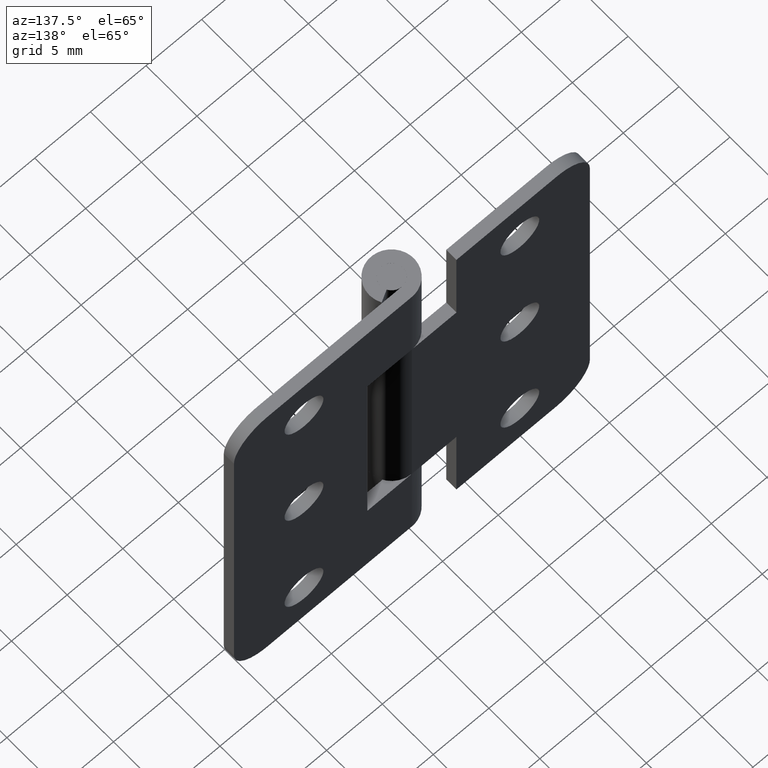
[diagram: clean part render]
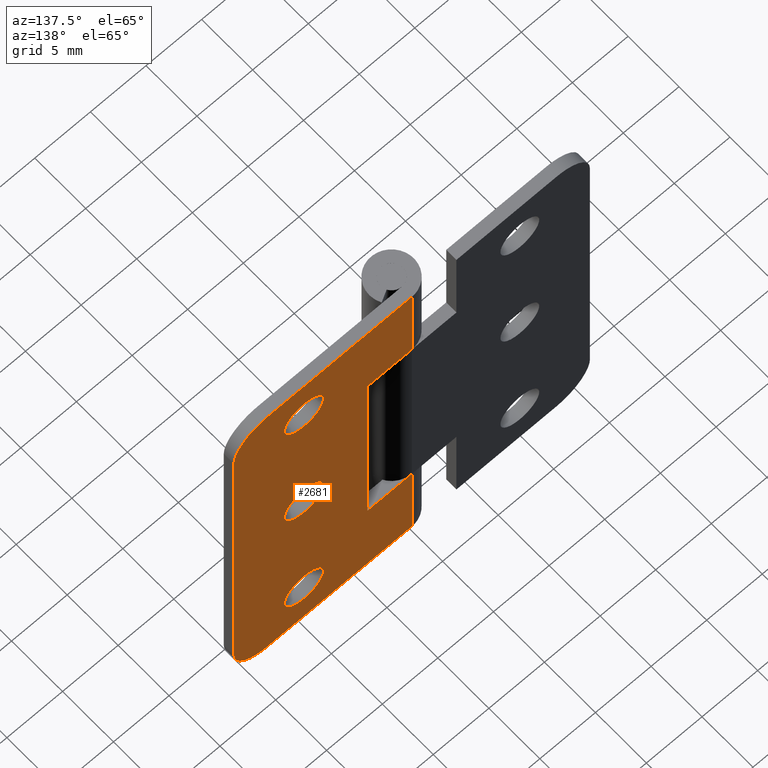
[diagram: same view with one face highlighted and labeled with its STEP entity id]
A machine part, auxiliary view. The second image highlights one B-rep face of the part: STEP entity #2681.
In plain terms, the highlighted face is a freeform B-spline surface patch.
Its self-contained STEP definition (entity closure, byte-faithful):
#1488=CARTESIAN_POINT('',(9.700004000000000,2.0,33.250000000000000));
#1489=VERTEX_POINT('',#1488);
#1490=CARTESIAN_POINT('',(7.955398665975187,2.0,31.637303417627429));
#1491=VERTEX_POINT('',#1490);
#1492=CARTESIAN_POINT('',(9.700004000000000,2.0,33.250000000000000));
#1493=CARTESIAN_POINT('',(8.082320639791041,2.000000000000000,33.250000000000000));
#1494=CARTESIAN_POINT('',(7.955398665975187,2.000000000000000,31.637303417627425));
#1502=(BOUNDED_CURVE()B_SPLINE_CURVE(2,(#1492,#1493,#1494),.UNSPECIFIED.,.F.,.U.)B_SPLINE_CURVE_WITH_KNOTS((3,3),(0.0,0.236331300612388),.UNSPECIFIED.)CURVE()GEOMETRIC_REPRESENTATION_ITEM()RATIONAL_B_SPLINE_CURVE((1.0,0.723120658629072,0.969723356129286))REPRESENTATION_ITEM(''));
#1503=EDGE_CURVE('',#1489,#1491,#1502,.T.);
#1505=CARTESIAN_POINT('',(11.444609334024809,2.0,31.362696582372578));
#1506=VERTEX_POINT('',#1505);
#1507=CARTESIAN_POINT('',(11.444609334024817,2.0,31.362696582372582));
#1508=CARTESIAN_POINT('',(11.450003999999995,2.000000000000000,31.431242312632406));
#1509=CARTESIAN_POINT('',(11.450004000000000,2.0,31.500000000000000));
#1510=CARTESIAN_POINT('',(11.450004000000000,2.0,33.249999999999993));
#1511=CARTESIAN_POINT('',(9.700004000000000,2.0,33.250000000000000));
#1519=(BOUNDED_CURVE()B_SPLINE_CURVE(2,(#1507,#1508,#1509,#1510,#1511),.UNSPECIFIED.,.F.,.U.)B_SPLINE_CURVE_WITH_KNOTS((3,2,3),(0.736331300612389,0.750000000000000,1.0),.UNSPECIFIED.)CURVE()GEOMETRIC_REPRESENTATION_ITEM()RATIONAL_B_SPLINE_CURVE((0.969723356129288,0.983986122557476,1.0,0.707106781186547,1.0))REPRESENTATION_ITEM(''));
#1520=EDGE_CURVE('',#1506,#1489,#1519,.T.);
#1587=CARTESIAN_POINT('',(9.700004000000000,2.0,29.750000000000000));
#1588=VERTEX_POINT('',#1587);
#1589=CARTESIAN_POINT('',(7.955398665975187,2.000000000000000,31.637303417627429));
#1590=CARTESIAN_POINT('',(7.950004000000001,2.000000000000000,31.568757687367601));
#1591=CARTESIAN_POINT('',(7.950004000000000,2.0,31.500000000000000));
#1592=CARTESIAN_POINT('',(7.950004000000000,2.0,29.750000000000007));
#1593=CARTESIAN_POINT('',(9.700004000000000,2.0,29.750000000000000));
#1601=(BOUNDED_CURVE()B_SPLINE_CURVE(2,(#1589,#1590,#1591,#1592,#1593),.UNSPECIFIED.,.F.,.U.)B_SPLINE_CURVE_WITH_KNOTS((3,2,3),(0.236331300612388,0.250000000000000,0.500000000000000),.UNSPECIFIED.)CURVE()GEOMETRIC_REPRESENTATION_ITEM()RATIONAL_B_SPLINE_CURVE((0.969723356129287,0.983986122557476,1.0,0.707106781186547,1.0))REPRESENTATION_ITEM(''));
#1602=EDGE_CURVE('',#1491,#1588,#1601,.T.);
#1636=CARTESIAN_POINT('',(9.700004000000000,2.0,29.750000000000000));
#1637=CARTESIAN_POINT('',(11.317687360208968,2.000000000000000,29.750000000000004));
#1638=CARTESIAN_POINT('',(11.444609334024811,2.000000000000000,31.362696582372578));
#1646=(BOUNDED_CURVE()B_SPLINE_CURVE(2,(#1636,#1637,#1638),.UNSPECIFIED.,.F.,.U.)B_SPLINE_CURVE_WITH_KNOTS((3,3),(0.500000000000000,0.736331300612389),.UNSPECIFIED.)CURVE()GEOMETRIC_REPRESENTATION_ITEM()RATIONAL_B_SPLINE_CURVE((1.0,0.723120658629071,0.969723356129288))REPRESENTATION_ITEM(''));
#1647=EDGE_CURVE('',#1588,#1506,#1646,.T.);
#1670=CARTESIAN_POINT('',(9.700004000000000,2.0,19.750000000000000));
#1671=VERTEX_POINT('',#1670);
#1672=CARTESIAN_POINT('',(7.955398665975187,2.0,18.137303417627429));
#1673=VERTEX_POINT('',#1672);
#1674=CARTESIAN_POINT('',(9.700004000000000,2.0,19.750000000000000));
#1675=CARTESIAN_POINT('',(8.082320639791037,2.0,19.749999999999996));
#1676=CARTESIAN_POINT('',(7.955398665975187,2.000000000000000,18.137303417627429));
#1684=(BOUNDED_CURVE()B_SPLINE_CURVE(2,(#1674,#1675,#1676),.UNSPECIFIED.,.F.,.U.)B_SPLINE_CURVE_WITH_KNOTS((3,3),(0.0,0.236331300612389),.UNSPECIFIED.)CURVE()GEOMETRIC_REPRESENTATION_ITEM()RATIONAL_B_SPLINE_CURVE((1.0,0.723120658629071,0.969723356129287))REPRESENTATION_ITEM(''));
#1685=EDGE_CURVE('',#1671,#1673,#1684,.T.);
#1687=CARTESIAN_POINT('',(11.444609334024809,2.0,17.862696582372571));
#1688=VERTEX_POINT('',#1687);
#1689=CARTESIAN_POINT('',(11.444609334024817,2.000000000000000,17.862696582372575));
#1690=CARTESIAN_POINT('',(11.450004000000002,2.000000000000000,17.931242312632399));
#1691=CARTESIAN_POINT('',(11.450004000000000,2.0,18.0));
#1692=CARTESIAN_POINT('',(11.450004000000000,2.0,19.749999999999996));
#1693=CARTESIAN_POINT('',(9.700004000000000,2.0,19.750000000000000));
#1701=(BOUNDED_CURVE()B_SPLINE_CURVE(2,(#1689,#1690,#1691,#1692,#1693),.UNSPECIFIED.,.F.,.U.)B_SPLINE_CURVE_WITH_KNOTS((3,2,3),(0.736331300612388,0.750000000000000,1.0),.UNSPECIFIED.)CURVE()GEOMETRIC_REPRESENTATION_ITEM()RATIONAL_B_SPLINE_CURVE((0.969723356129287,0.983986122557476,1.0,0.707106781186547,1.0))REPRESENTATION_ITEM(''));
#1702=EDGE_CURVE('',#1688,#1671,#1701,.T.);
#1769=CARTESIAN_POINT('',(9.700004000000000,2.0,16.250000000000000));
#1770=VERTEX_POINT('',#1769);
#1771=CARTESIAN_POINT('',(7.955398665975187,2.000000000000000,18.137303417627422));
#1772=CARTESIAN_POINT('',(7.950004000000000,2.000000000000000,18.068757687367601));
#1773=CARTESIAN_POINT('',(7.950004000000000,2.0,18.0));
#1774=CARTESIAN_POINT('',(7.950004000000000,2.0,16.249999999999993));
#1775=CARTESIAN_POINT('',(9.700004000000000,2.0,16.250000000000000));
#1783=(BOUNDED_CURVE()B_SPLINE_CURVE(2,(#1771,#1772,#1773,#1774,#1775),.UNSPECIFIED.,.F.,.U.)B_SPLINE_CURVE_WITH_KNOTS((3,2,3),(0.236331300612388,0.250000000000000,0.500000000000000),.UNSPECIFIED.)CURVE()GEOMETRIC_REPRESENTATION_ITEM()RATIONAL_B_SPLINE_CURVE((0.969723356129287,0.983986122557476,1.0,0.707106781186547,1.0))REPRESENTATION_ITEM(''));
#1784=EDGE_CURVE('',#1673,#1770,#1783,.T.);
#1818=CARTESIAN_POINT('',(9.700004000000000,2.0,16.250000000000000));
#1819=CARTESIAN_POINT('',(11.317687360208968,2.000000000000000,16.249999999999996));
#1820=CARTESIAN_POINT('',(11.444609334024811,2.000000000000000,17.862696582372571));
#1828=(BOUNDED_CURVE()B_SPLINE_CURVE(2,(#1818,#1819,#1820),.UNSPECIFIED.,.F.,.U.)B_SPLINE_CURVE_WITH_KNOTS((3,3),(0.500000000000000,0.736331300612389),.UNSPECIFIED.)CURVE()GEOMETRIC_REPRESENTATION_ITEM()RATIONAL_B_SPLINE_CURVE((1.0,0.723120658629071,0.969723356129288))REPRESENTATION_ITEM(''));
#1829=EDGE_CURVE('',#1770,#1688,#1828,.T.);
#1852=CARTESIAN_POINT('',(9.700004000000000,2.0,6.249999999999999));
#1853=VERTEX_POINT('',#1852);
#1854=CARTESIAN_POINT('',(7.955398665975188,2.0,4.637303417627427));
#1855=VERTEX_POINT('',#1854);
#1856=CARTESIAN_POINT('',(9.700004000000000,2.0,6.249999999999999));
#1857=CARTESIAN_POINT('',(8.082320639791039,2.000000000000000,6.250000000000000));
#1858=CARTESIAN_POINT('',(7.955398665975187,2.000000000000000,4.637303417627427));
#1866=(BOUNDED_CURVE()B_SPLINE_CURVE(2,(#1856,#1857,#1858),.UNSPECIFIED.,.F.,.U.)B_SPLINE_CURVE_WITH_KNOTS((3,3),(0.0,0.236331300612388),.UNSPECIFIED.)CURVE()GEOMETRIC_REPRESENTATION_ITEM()RATIONAL_B_SPLINE_CURVE((1.0,0.723120658629072,0.969723356129287))REPRESENTATION_ITEM(''));
#1867=EDGE_CURVE('',#1853,#1855,#1866,.T.);
#1869=CARTESIAN_POINT('',(11.444609334024809,2.0,4.362696582372575));
#1870=VERTEX_POINT('',#1869);
#1871=CARTESIAN_POINT('',(11.444609334024813,2.000000000000000,4.362696582372575));
#1872=CARTESIAN_POINT('',(11.450004000000000,2.0,4.431242312632401));
#1873=CARTESIAN_POINT('',(11.450004000000000,2.0,4.500000000000000));
#1874=CARTESIAN_POINT('',(11.450004000000000,2.0,6.249999999999999));
#1875=CARTESIAN_POINT('',(9.700004000000000,2.0,6.249999999999999));
#1883=(BOUNDED_CURVE()B_SPLINE_CURVE(2,(#1871,#1872,#1873,#1874,#1875),.UNSPECIFIED.,.F.,.U.)B_SPLINE_CURVE_WITH_KNOTS((3,2,3),(0.736331300612389,0.750000000000000,1.0),.UNSPECIFIED.)CURVE()GEOMETRIC_REPRESENTATION_ITEM()RATIONAL_B_SPLINE_CURVE((0.969723356129287,0.983986122557476,1.0,0.707106781186547,1.0))REPRESENTATION_ITEM(''));
#1884=EDGE_CURVE('',#1870,#1853,#1883,.T.);
#1951=CARTESIAN_POINT('',(9.700004000000000,2.0,2.750000000000000));
#1952=VERTEX_POINT('',#1951);
#1953=CARTESIAN_POINT('',(7.955398665975189,2.000000000000000,4.637303417627427));
#1954=CARTESIAN_POINT('',(7.950004000000000,2.000000000000000,4.568757687367600));
#1955=CARTESIAN_POINT('',(7.950004000000000,2.0,4.500000000000000));
#1956=CARTESIAN_POINT('',(7.950004000000000,2.0,2.749999999999999));
#1957=CARTESIAN_POINT('',(9.700004000000000,2.0,2.750000000000000));
#1965=(BOUNDED_CURVE()B_SPLINE_CURVE(2,(#1953,#1954,#1955,#1956,#1957),.UNSPECIFIED.,.F.,.U.)B_SPLINE_CURVE_WITH_KNOTS((3,2,3),(0.236331300612388,0.250000000000000,0.500000000000000),.UNSPECIFIED.)CURVE()GEOMETRIC_REPRESENTATION_ITEM()RATIONAL_B_SPLINE_CURVE((0.969723356129287,0.983986122557476,1.0,0.707106781186547,1.0))REPRESENTATION_ITEM(''));
#1966=EDGE_CURVE('',#1855,#1952,#1965,.T.);
#2000=CARTESIAN_POINT('',(9.700004000000000,2.0,2.750000000000000));
#2001=CARTESIAN_POINT('',(11.317687360208968,2.000000000000000,2.750000000000000));
#2002=CARTESIAN_POINT('',(11.444609334024811,2.000000000000000,4.362696582372576));
#2010=(BOUNDED_CURVE()B_SPLINE_CURVE(2,(#2000,#2001,#2002),.UNSPECIFIED.,.F.,.U.)B_SPLINE_CURVE_WITH_KNOTS((3,3),(0.500000000000000,0.736331300612389),.UNSPECIFIED.)CURVE()GEOMETRIC_REPRESENTATION_ITEM()RATIONAL_B_SPLINE_CURVE((1.0,0.723120658629071,0.969723356129288))REPRESENTATION_ITEM(''));
#2011=EDGE_CURVE('',#1952,#1870,#2010,.T.);
#2030=CARTESIAN_POINT('',(13.000006999999901,2.0,36.0));
#2031=VERTEX_POINT('',#2030);
#2032=CARTESIAN_POINT('',(16.000006999999901,2.0,33.0));
#2033=VERTEX_POINT('',#2032);
#2034=CARTESIAN_POINT('',(13.000006999999901,2.0,36.000000000000007));
#2035=CARTESIAN_POINT('',(16.000006999999904,2.000000000000000,36.000000000000014));
#2036=CARTESIAN_POINT('',(16.000006999999901,2.0,33.0));
#2044=(BOUNDED_CURVE()B_SPLINE_CURVE(2,(#2034,#2035,#2036),.UNSPECIFIED.,.F.,.U.)CURVE()GEOMETRIC_REPRESENTATION_ITEM()QUASI_UNIFORM_CURVE()RATIONAL_B_SPLINE_CURVE((1.0,0.707106781186548,1.0))REPRESENTATION_ITEM(''));
#2045=EDGE_CURVE('',#2031,#2033,#2044,.T.);
#2091=CARTESIAN_POINT('',(16.000006999999901,2.0,3.0));
#2092=VERTEX_POINT('',#2091);
#2093=CARTESIAN_POINT('',(13.000006999999901,2.0,0.0));
#2094=VERTEX_POINT('',#2093);
#2095=CARTESIAN_POINT('',(16.000006999999901,2.0,3.0));
#2096=CARTESIAN_POINT('',(16.000006999999904,2.000000000000000,0.0));
#2097=CARTESIAN_POINT('',(13.000006999999901,2.0,0.0));
#2105=(BOUNDED_CURVE()B_SPLINE_CURVE(2,(#2095,#2096,#2097),.UNSPECIFIED.,.F.,.U.)CURVE()GEOMETRIC_REPRESENTATION_ITEM()QUASI_UNIFORM_CURVE()RATIONAL_B_SPLINE_CURVE((1.0,0.707106781186548,1.0))REPRESENTATION_ITEM(''));
#2106=EDGE_CURVE('',#2092,#2094,#2105,.T.);
#2152=CARTESIAN_POINT('',(3.999999999999800,2.0,8.250000000000000));
#2153=VERTEX_POINT('',#2152);
#2159=CARTESIAN_POINT('',(-3.673807E-016,2.0,8.250000000000000));
#2160=VERTEX_POINT('',#2159);
#2161=CARTESIAN_POINT('',(3.999999999999800,2.0,8.250000000000000));
#2162=CARTESIAN_POINT('',(-3.673807E-016,2.0,8.250000000000000));
#2163=QUASI_UNIFORM_CURVE('',1,(#2161,#2162),.UNSPECIFIED.,.F.,.U.);
#2164=EDGE_CURVE('',#2153,#2160,#2163,.T.);
#2228=CARTESIAN_POINT('',(3.999999999999800,2.0,27.750000000000000));
#2229=VERTEX_POINT('',#2228);
#2235=CARTESIAN_POINT('',(3.999999999999800,2.0,27.750000000000000));
#2236=CARTESIAN_POINT('',(3.999999999999800,2.0,8.250000000000000));
#2237=QUASI_UNIFORM_CURVE('',1,(#2235,#2236),.UNSPECIFIED.,.F.,.U.);
#2238=EDGE_CURVE('',#2229,#2153,#2237,.T.);
#2284=CARTESIAN_POINT('',(-3.673807E-016,2.0,27.750000000000000));
#2285=VERTEX_POINT('',#2284);
#2305=CARTESIAN_POINT('',(-3.673807E-016,2.0,27.750000000000000));
#2306=CARTESIAN_POINT('',(3.999999999999800,2.0,27.750000000000000));
#2307=QUASI_UNIFORM_CURVE('',1,(#2305,#2306),.UNSPECIFIED.,.F.,.U.);
#2308=EDGE_CURVE('',#2285,#2229,#2307,.T.);
#2319=CARTESIAN_POINT('',(-3.673819E-016,2.0,0.0));
#2320=VERTEX_POINT('',#2319);
#2321=CARTESIAN_POINT('',(-3.673819E-016,2.0,0.0));
#2322=CARTESIAN_POINT('',(13.000006999999901,2.0,0.0));
#2323=QUASI_UNIFORM_CURVE('',1,(#2321,#2322),.UNSPECIFIED.,.F.,.U.);
#2324=EDGE_CURVE('',#2320,#2094,#2323,.T.);
#2397=CARTESIAN_POINT('',(-3.673819E-016,2.0,36.0));
#2398=VERTEX_POINT('',#2397);
#2399=CARTESIAN_POINT('',(-3.673819E-016,2.0,36.0));
#2400=CARTESIAN_POINT('',(13.000006999999901,2.0,36.0));
#2401=QUASI_UNIFORM_CURVE('',1,(#2399,#2400),.UNSPECIFIED.,.F.,.U.);
#2402=EDGE_CURVE('',#2398,#2031,#2401,.T.);
#2465=CARTESIAN_POINT('',(16.000006999999901,2.0,33.0));
#2466=CARTESIAN_POINT('',(16.000006999999901,2.0,3.0));
#2467=QUASI_UNIFORM_CURVE('',1,(#2465,#2466),.UNSPECIFIED.,.F.,.U.);
#2468=EDGE_CURVE('',#2033,#2092,#2467,.T.);
#2496=CARTESIAN_POINT('',(-3.673819E-016,2.0,36.0));
#2497=CARTESIAN_POINT('',(-3.673807E-016,2.0,27.750000000000000));
#2498=QUASI_UNIFORM_CURVE('',1,(#2496,#2497),.UNSPECIFIED.,.F.,.U.);
#2499=EDGE_CURVE('',#2398,#2285,#2498,.T.);
#2587=CARTESIAN_POINT('',(-3.673807E-016,2.0,8.250000000000000));
#2588=CARTESIAN_POINT('',(-3.673819E-016,2.0,0.0));
#2589=QUASI_UNIFORM_CURVE('',1,(#2587,#2588),.UNSPECIFIED.,.F.,.U.);
#2590=EDGE_CURVE('',#2160,#2320,#2589,.T.);
#2646=CARTESIAN_POINT('',(-0.799200318638877,2.0,-1.798199930225013));
#2647=CARTESIAN_POINT('',(-0.799200318638877,2.0,37.798200895820251));
#2648=CARTESIAN_POINT('',(16.799207747792408,2.0,-1.798199930225013));
#2649=CARTESIAN_POINT('',(16.799207747792408,2.0,37.798200895820251));
#2650=B_SPLINE_SURFACE_WITH_KNOTS('',1,1,((#2646,#2648),(#2647,#2649)),.UNSPECIFIED.,.F.,.F.,.U.,(2,2),(2,2),(0.0,39.596400826045262),(0.0,17.598408066431290),.UNSPECIFIED.);
#2651=ORIENTED_EDGE('',*,*,#2468,.T.);
#2652=ORIENTED_EDGE('',*,*,#2106,.T.);
#2653=ORIENTED_EDGE('',*,*,#2324,.F.);
#2654=ORIENTED_EDGE('',*,*,#2590,.F.);
#2655=ORIENTED_EDGE('',*,*,#2164,.F.);
#2656=ORIENTED_EDGE('',*,*,#2238,.F.);
#2657=ORIENTED_EDGE('',*,*,#2308,.F.);
#2658=ORIENTED_EDGE('',*,*,#2499,.F.);
#2659=ORIENTED_EDGE('',*,*,#2402,.T.);
#2660=ORIENTED_EDGE('',*,*,#2045,.T.);
#2661=EDGE_LOOP('',(#2651,#2652,#2653,#2654,#2655,#2656,#2657,#2658,#2659,#2660));
#2662=FACE_OUTER_BOUND('',#2661,.T.);
#2663=ORIENTED_EDGE('',*,*,#2011,.T.);
#2664=ORIENTED_EDGE('',*,*,#1884,.T.);
#2665=ORIENTED_EDGE('',*,*,#1867,.T.);
#2666=ORIENTED_EDGE('',*,*,#1966,.T.);
#2667=EDGE_LOOP('',(#2663,#2664,#2665,#2666));
#2668=FACE_BOUND('',#2667,.T.);
#2669=ORIENTED_EDGE('',*,*,#1829,.T.);
#2670=ORIENTED_EDGE('',*,*,#1702,.T.);
#2671=ORIENTED_EDGE('',*,*,#1685,.T.);
#2672=ORIENTED_EDGE('',*,*,#1784,.T.);
#2673=EDGE_LOOP('',(#2669,#2670,#2671,#2672));
#2674=FACE_BOUND('',#2673,.T.);
#2675=ORIENTED_EDGE('',*,*,#1647,.T.);
#2676=ORIENTED_EDGE('',*,*,#1520,.T.);
#2677=ORIENTED_EDGE('',*,*,#1503,.T.);
#2678=ORIENTED_EDGE('',*,*,#1602,.T.);
#2679=EDGE_LOOP('',(#2675,#2676,#2677,#2678));
#2680=FACE_BOUND('',#2679,.T.);
#2681=ADVANCED_FACE('',(#2662,#2668,#2674,#2680),#2650,.T.);